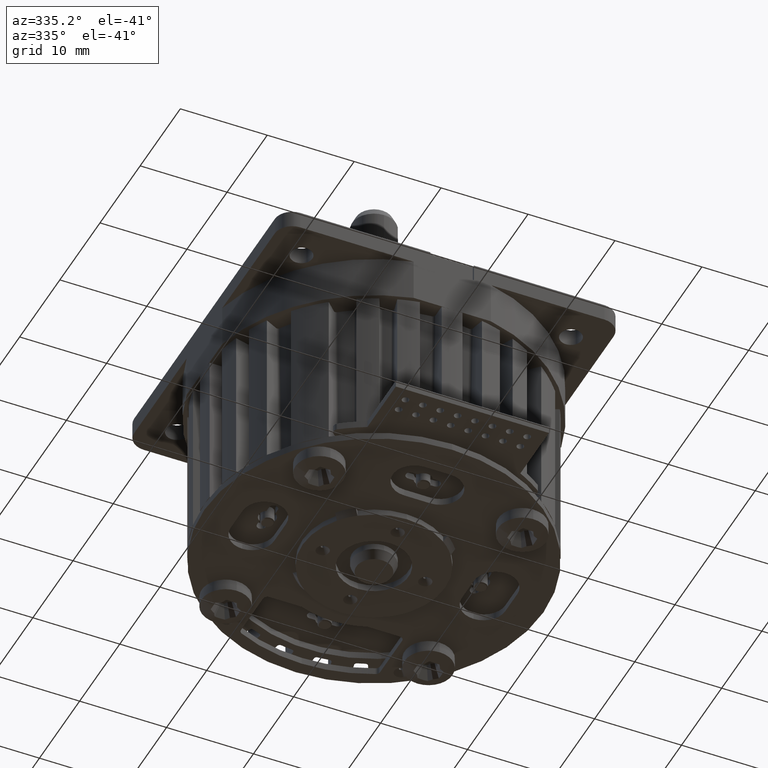
[diagram: clean part render]
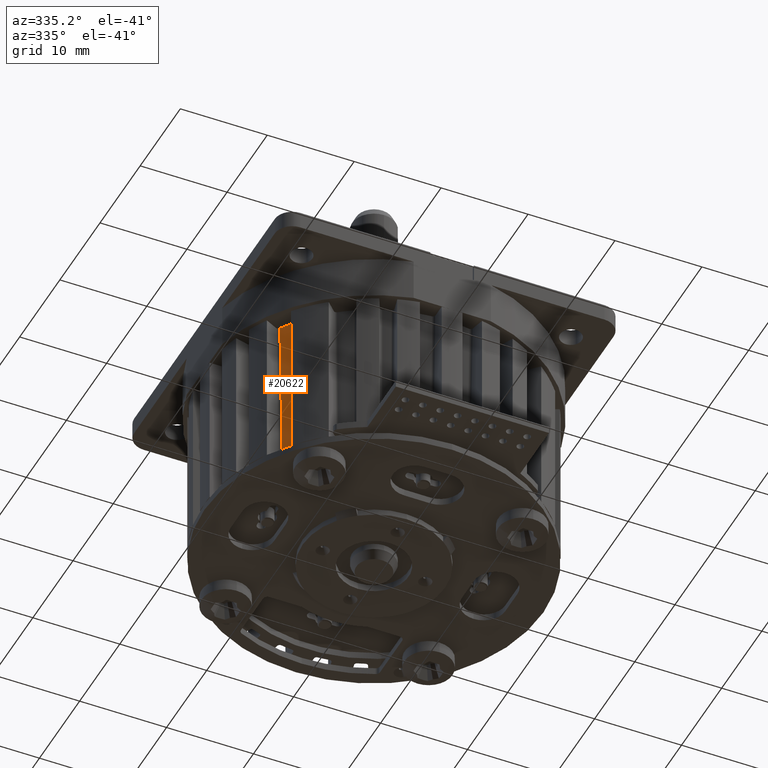
[diagram: same view with one face highlighted and labeled with its STEP entity id]
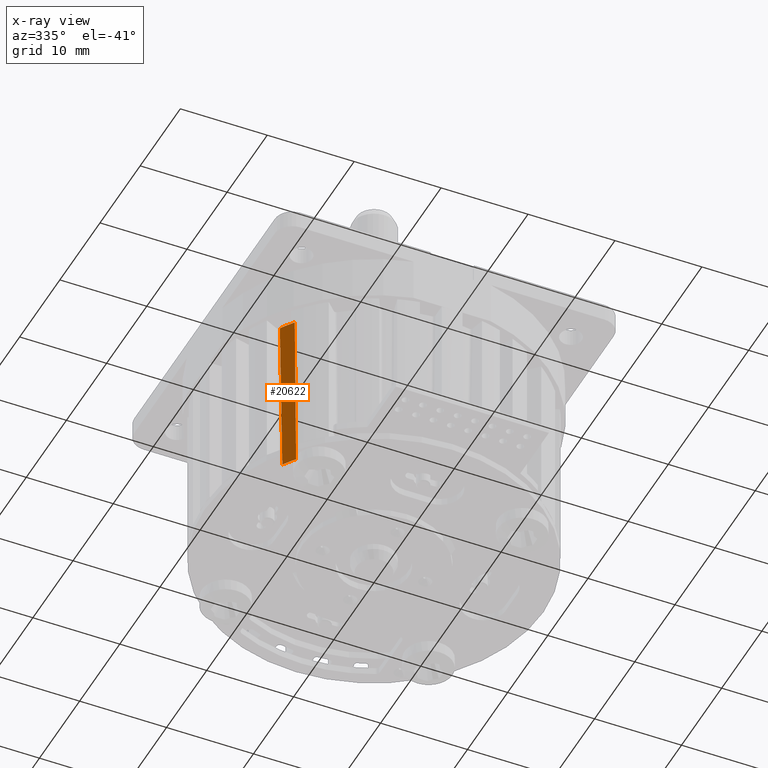
[diagram: x-ray of the same camera — body ghosted, the highlighted face saturated]
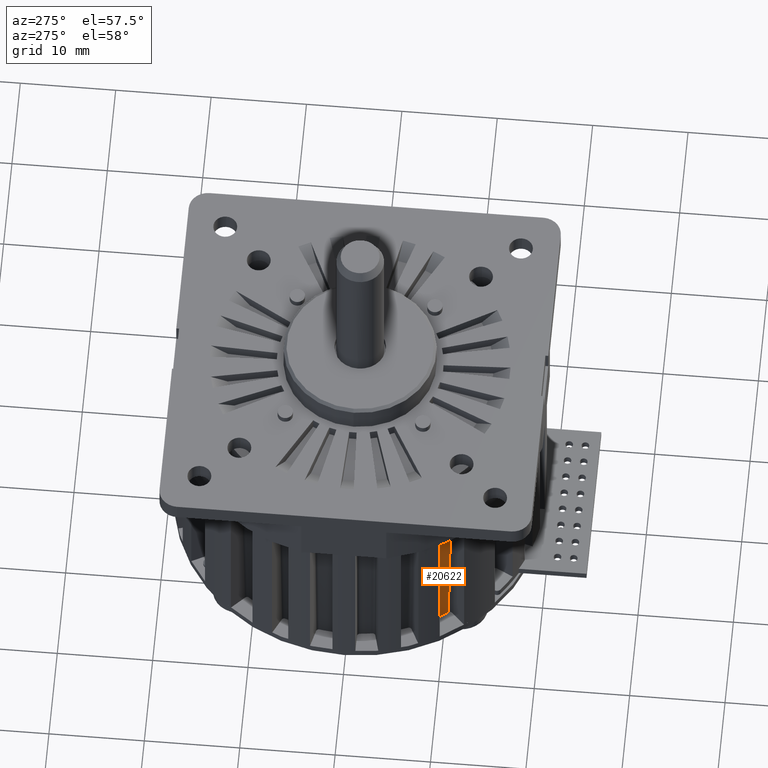
[diagram: same view with one face highlighted and labeled with its STEP entity id]
A machine part, auxiliary view. The second image highlights one B-rep face of the part: STEP entity #20622.
The next image is the same camera in x-ray: the body ghosted, the highlighted face saturated — about 0% of this face is hidden behind the body in this view.
A second angle (auxiliary view) of the same face is appended — the face is thin or edge-on in the first view.
In plain terms, the highlighted conical surface has half-angle 1.23 deg.
Its self-contained STEP definition (entity closure, byte-faithful):
#10357=CARTESIAN_POINT('',(0.E0,0.E0,-2.36E1));
#10358=DIRECTION('',(0.E0,0.E0,-1.E0));
#10359=DIRECTION('',(-7.969255698112E-1,-6.040775084218E-1,0.E0));
#10360=AXIS2_PLACEMENT_3D('',#10357,#10358,#10359);
#10525=CARTESIAN_POINT('',(0.E0,0.E0,-5.E0));
#10526=DIRECTION('',(0.E0,0.E0,1.E0));
#10527=DIRECTION('',(-8.528190244465E-1,-5.222065793745E-1,0.E0));
#10528=AXIS2_PLACEMENT_3D('',#10525,#10526,#10527);
#12623=CARTESIAN_POINT('',(-1.509433987131E1,-9.242715466608E0,
-4.999999769317E0));
#12631=CARTESIAN_POINT('',(-1.378682558109E1,-1.045055093376E1,
-2.360000035632E1));
#12632=CARTESIAN_POINT('',(-1.381858214326E1,-1.048209790207E1,
-2.153326318583E1));
#12633=CARTESIAN_POINT('',(-1.388200461571E1,-1.054533906443E1,
-1.739983661880E1));
#12634=CARTESIAN_POINT('',(-1.397716692915E1,-1.064000853729E1,
-1.119983502464E1));
#12635=CARTESIAN_POINT('',(-1.404059942501E1,-1.070325102321E1,
-7.066596302908E0));
#12636=CARTESIAN_POINT('',(-1.407234429291E1,-1.073479366467E1,
-4.999999640095E0));
#12638=CARTESIAN_POINT('',(-1.509433987131E1,-9.242715466608E0,
-4.999999769317E0));
#12639=CARTESIAN_POINT('',(-1.505460896207E1,-9.222632614458E0,
-7.066639425896E0));
#12640=CARTESIAN_POINT('',(-1.497507236654E1,-9.182535959078E0,
-1.119993609450E1));
#12641=CARTESIAN_POINT('',(-1.485587629592E1,-9.122341064484E0,
-1.739993707303E1));
#12642=CARTESIAN_POINT('',(-1.477634076154E1,-9.082249149398E0,
-2.153330629871E1));
#12643=CARTESIAN_POINT('',(-1.473660718730E1,-9.062161831378E0,
-2.360000022859E1));
#16714=VERTEX_POINT('',#12623);
#16715=CARTESIAN_POINT('',(-1.407235812966E1,-1.073480332312E1,-5.E0));
#16716=VERTEX_POINT('',#16715);
#17136=VERTEX_POINT('',#12643);
#17139=VERTEX_POINT('',#12631);
#20610=CARTESIAN_POINT('',(0.E0,0.E0,-1.43E1));
#20611=DIRECTION('',(0.E0,0.E0,1.E0));
#20612=DIRECTION('',(-1.E0,0.E0,0.E0));
#20613=AXIS2_PLACEMENT_3D('',#20610,#20611,#20612);
#20614=CONICAL_SURFACE('',#20613,1.749967888846E1,1.23E0);
#20615=ORIENTED_EDGE('',*,*,#18066,.T.);
#20617=ORIENTED_EDGE('',*,*,#20616,.F.);
#20618=ORIENTED_EDGE('',*,*,#17890,.T.);
#20619=ORIENTED_EDGE('',*,*,#20605,.F.);
#20620=EDGE_LOOP('',(#20615,#20617,#20618,#20619));
#20621=FACE_OUTER_BOUND('',#20620,.F.);
#20622=ADVANCED_FACE('',(#20621),#20614,.T.);
#10361=CIRCLE('',#10360,1.73E1);
#10529=CIRCLE('',#10528,1.769935777692E1);
#12637=B_SPLINE_CURVE_WITH_KNOTS('',3,(#12631,#12632,#12633,#12634,#12635,
#12636),.UNSPECIFIED.,.F.,.F.,(4,1,1,4),(0.E0,3.333333333333E-1,
6.666666666667E-1,1.E0),.UNSPECIFIED.);
#12644=B_SPLINE_CURVE_WITH_KNOTS('',3,(#12638,#12639,#12640,#12641,#12642,
#12643),.UNSPECIFIED.,.F.,.F.,(4,1,1,4),(0.E0,3.333333333333E-1,
6.666666666667E-1,1.E0),.UNSPECIFIED.);
#17890=EDGE_CURVE('',#17139,#17136,#10361,.T.);
#18066=EDGE_CURVE('',#16714,#16716,#10529,.T.);
#20605=EDGE_CURVE('',#16714,#17136,#12644,.T.);
#20616=EDGE_CURVE('',#17139,#16716,#12637,.T.);